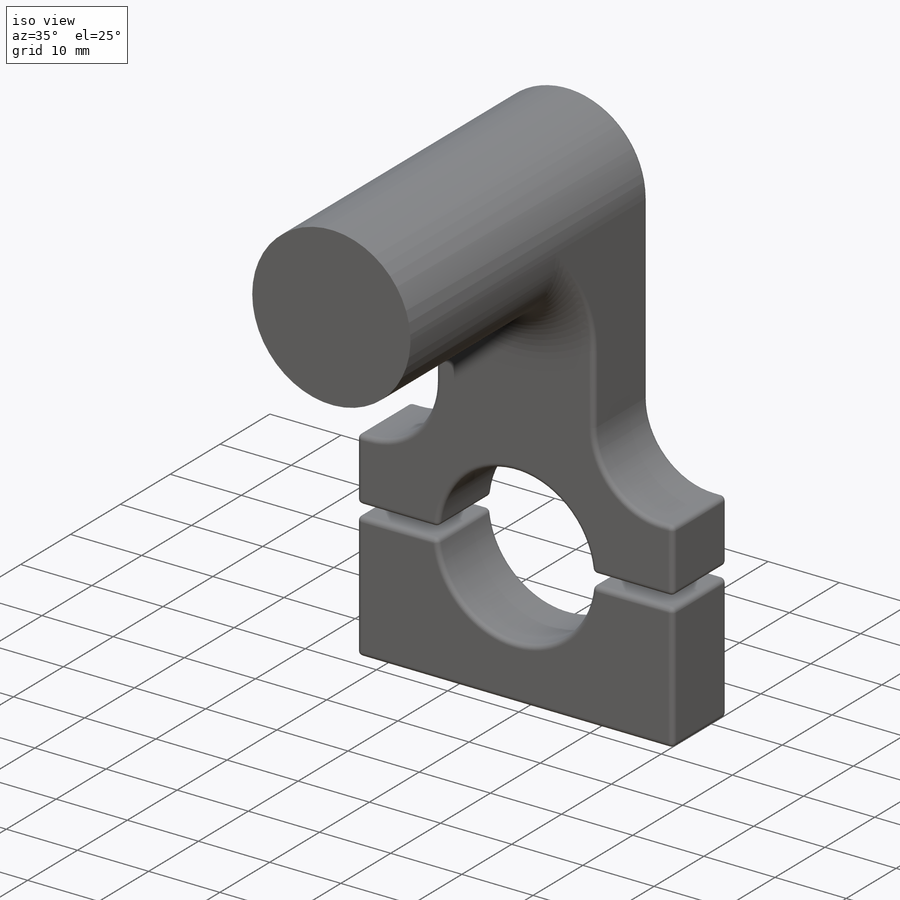
[diagram: iso view]
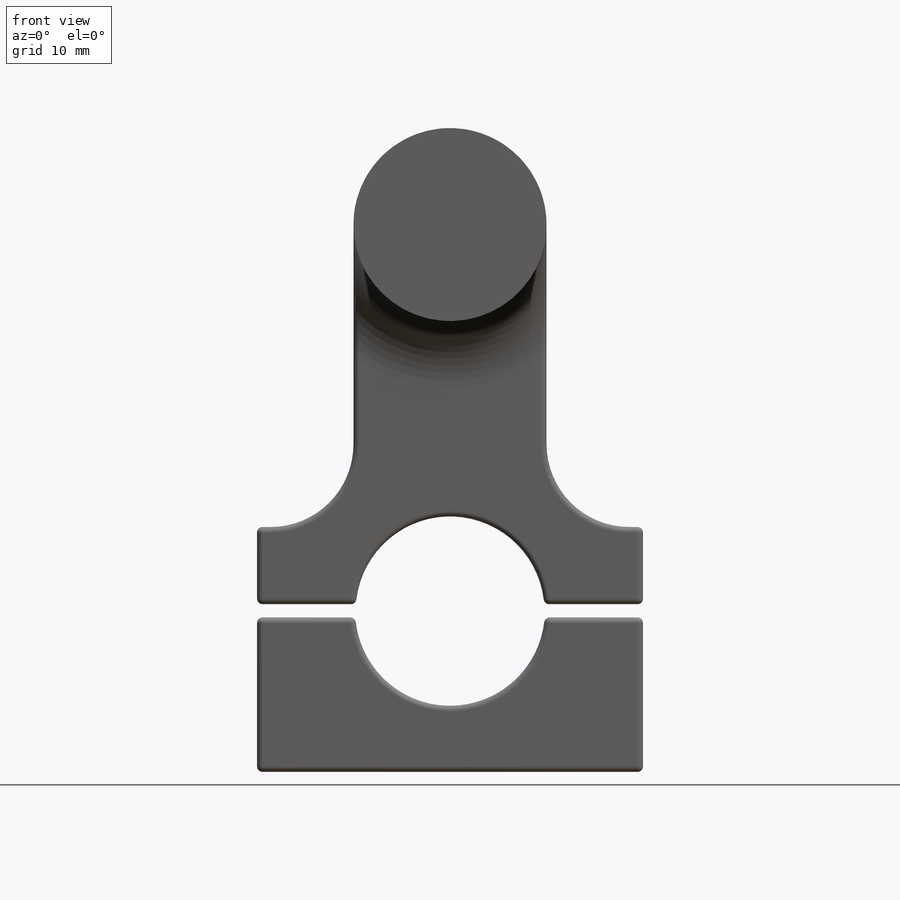
[diagram: front view]
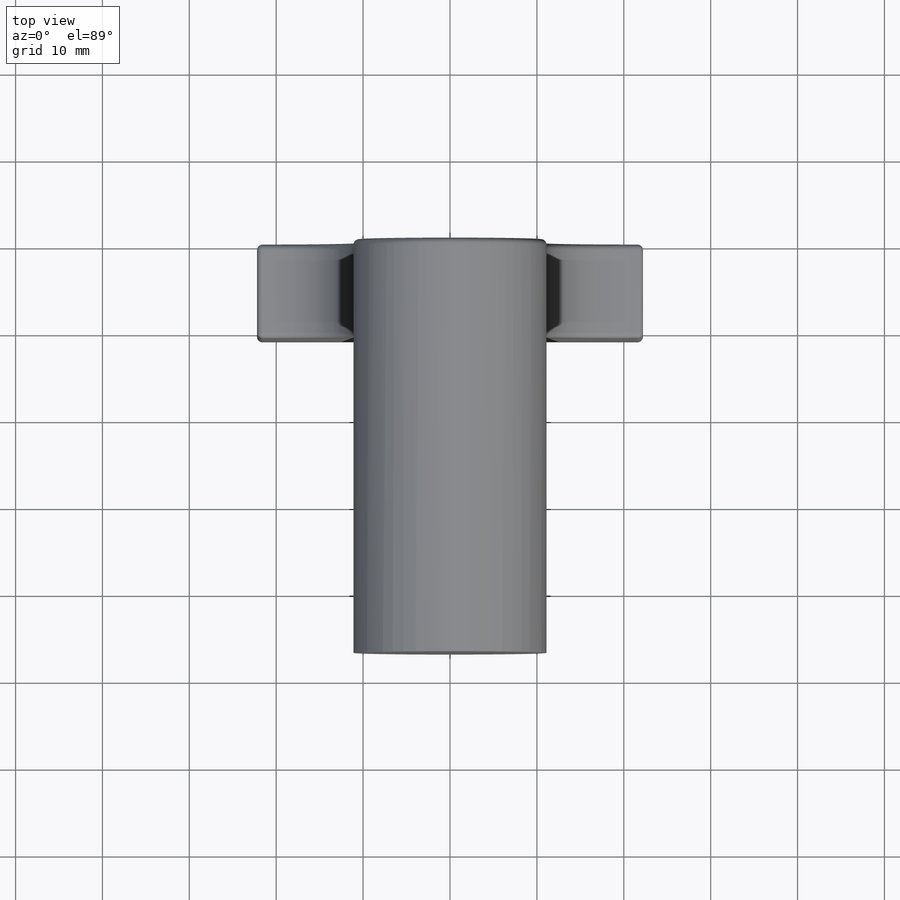
[diagram: top view]
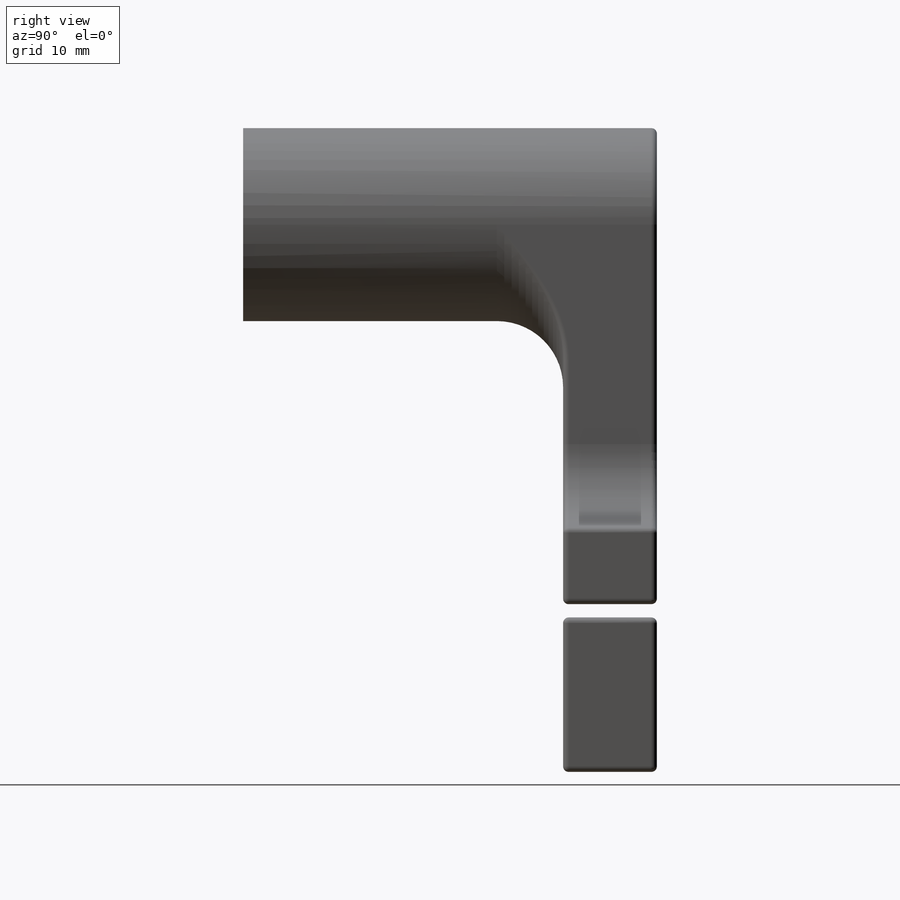
[diagram: right view]
SOLIDWORKS PART (.sldprt)
format: sldprt  version: not decoded by parser v0  size: 483,328 bytes
history: native  units: mm
features: sketch x7, fillet x3, cut_revolve x3, extrude x2, material x1, plane x1, mirror x1, cut_extrude x1 (+15 scaffold rows collapsed)
feature tree (34):
  scaffold x15  (default folders/planes/origin — collapsed)
  material  "Material <not specified>"
  sketch  "Sketch2"  dims[D1=22.225mm]
  extrude  "Boss-Extrude1"  Depth=47.625mm
  sketch  "Sketch3"  dims[c1.D1=21.717mm c1.D2=44.45mm c1.D5=9.525mm c1.D6=9.525mm c2.D2=21.844mm c2.D7=0.635mm c2.D4=0.635mm c2.D10=0.635mm c2.D3=8.89mm c3.D4=0.762mm c3.D5=~2.016151mm c3.D7=3.81mm c3.D2=22.86mm c3.D8=1.524mm c3.D9=0.762mm c4.D8=1.524mm c4.D9=17.78mm c4.D11=8.89mm c4.D12=0.762mm c4.D13=~44.423867mm]
  extrude  "Boss-Extrude2"  Depth=10.795mm
  fillet  "Fillet1"  Radius=7.62mm
  sketch  "Sketch5"
  plane  "Plane1"  Offset=5.3975mm
  sketch  "Sketch9"  dims[D1=1.524mm D2=2.0193mm]
  cut_revolve  "Cut-Revolve1"  Angle=360deg
  mirror  "Mirror2"
  fillet  "Fillet2"  Radius=0.635mm
  sketch  "Sketch10"  dims[D1=12.7mm]
  cut_extrude  "Cut-Extrude1"  Depth=33.02mm
  fillet  "Fillet4"  Radius=0.635mm
  sketch  "Sketch11"  dims[D1=1.524mm D2=2.0193mm]
  cut_revolve  "Cut-Revolve2"  Angle=360deg
  sketch  "Sketch12"  dims[D1=1.524mm D2=2.0193mm]
  cut_revolve  "Cut-Revolve3"  Angle=360deg
decode coverage: 15 of 17 modeling features carry decoded parameters
note: ~ marks probable driven/reference dimensions
note: suppression state not decoded; provenance and decode notes live in map.json
